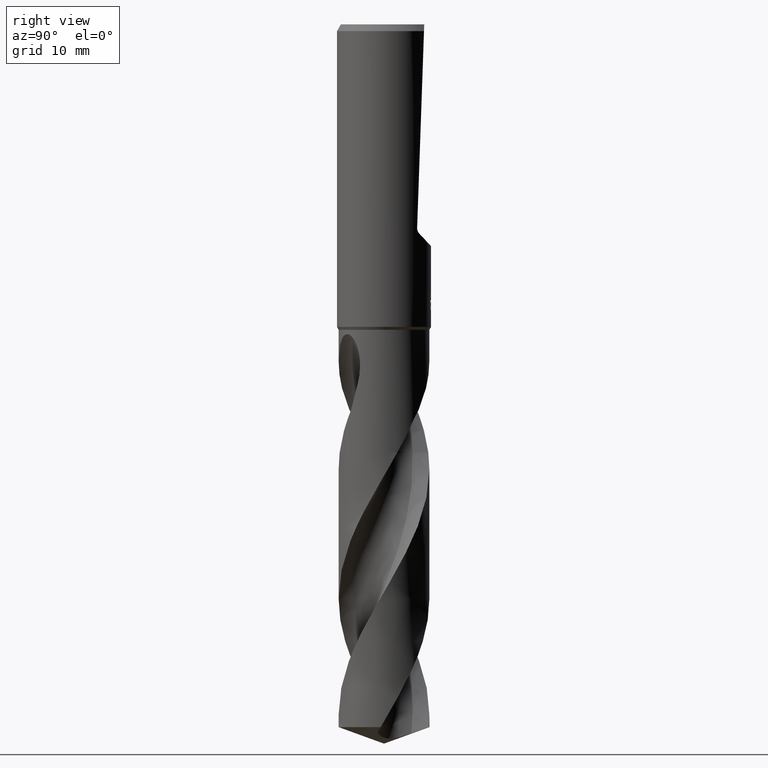
[diagram: clean part render]
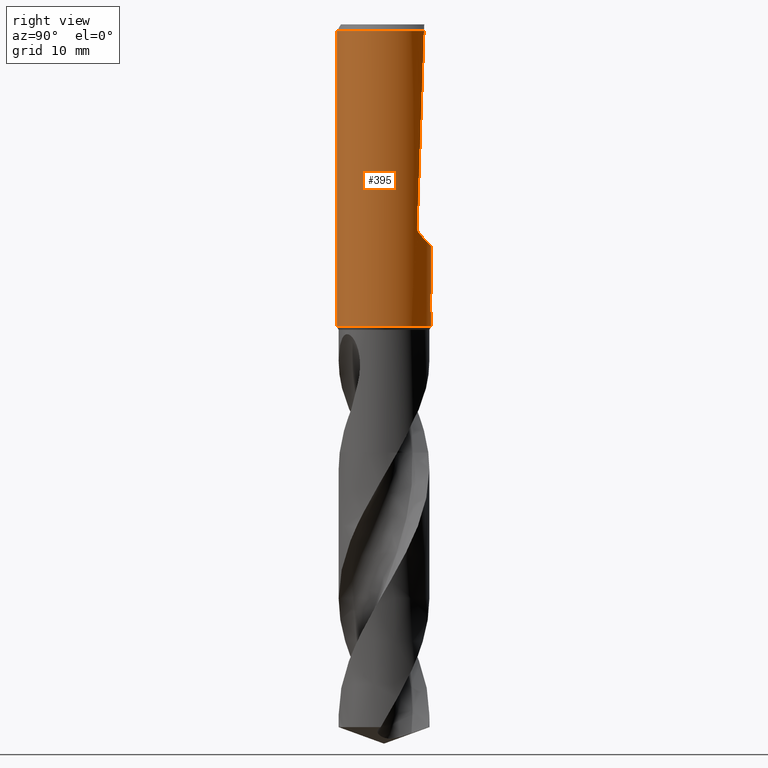
[diagram: same view with one face highlighted and labeled with its STEP entity id]
A machine part, right view. The second image highlights one B-rep face of the part: STEP entity #395.
In plain terms, the highlighted cylindrical surface (partial cylindrical patch) has radius 7 mm, axis along (-0, -0, 1).
Its self-contained STEP definition (entity closure, byte-faithful):
#313=EDGE_CURVE('',#619,#573,#877,.T.);
#317=VERTEX_POINT('',#881);
#333=EDGE_CURVE('',#449,#659,#899,.T.);
#351=EDGE_CURVE('',#417,#681,#922,.T.);
#359=EDGE_CURVE('',#681,#709,#932,.T.);
#361=EDGE_CURVE('',#443,#317,#934,.T.);
#387=EDGE_CURVE('',#539,#735,#961,.T.);
#393=EDGE_CURVE('',#317,#449,#968,.T.);
#395=ADVANCED_FACE('',(#970),#971,.T.);
#415=VERTEX_POINT('',#991);
#417=VERTEX_POINT('',#993);
#443=VERTEX_POINT('',#1022);
#449=VERTEX_POINT('',#1029);
#509=EDGE_CURVE('',#581,#417,#1093,.T.);
#511=EDGE_CURVE('',#573,#581,#1095,.T.);
#521=EDGE_CURVE('',#735,#619,#1107,.T.);
#539=VERTEX_POINT('',#1126);
#573=VERTEX_POINT('',#1163);
#581=VERTEX_POINT('',#1172);
#619=VERTEX_POINT('',#1214);
#653=EDGE_CURVE('',#713,#415,#1254,.T.);
#657=EDGE_CURVE('',#415,#669,#1258,.T.);
#659=VERTEX_POINT('',#1260);
#669=VERTEX_POINT('',#1271);
#681=VERTEX_POINT('',#1283);
#709=VERTEX_POINT('',#1312);
#713=VERTEX_POINT('',#1316);
#725=EDGE_CURVE('',#659,#669,#1328,.T.);
#735=VERTEX_POINT('',#1338);
#751=EDGE_CURVE('',#539,#713,#1354,.T.);
#843=EDGE_CURVE('',#443,#709,#1457,.T.);
#877=LINE('',#1528,#1529);
#881=CARTESIAN_POINT('',(4.62951370980335,5.2504859594844,-31.1252435197041));
#899=ELLIPSE('',#1559,200.575958434908,7.0);
#922=B_SPLINE_CURVE_WITH_KNOTS('',3,(#1820,#1821,#1822,#1823,#1824,#1825,#1826,#1827,#1828,#1829),.UNSPECIFIED.,.F.,.F.,(4,2,2,2,4),(0.615936741381086,0.923905112071629,1.23187348276217,1.53971221216111,1.84755094156004),.UNSPECIFIED.);
#932=B_SPLINE_CURVE_WITH_KNOTS('',3,(#2302,#2303,#2304,#2305,#2306,#2307,#2308,#2309,#2310,#2311,#2312,#2313,#2314,#2315,#2316,#2317,#2318,#2319,#2320,#2321,#2322,#2323,#2324,#2325,#2326,#2327,#2328),.UNSPECIFIED.,.F.,.F.,(4,2,3,2,2,2,2,2,2,2,2,2,4),(-0.542036445993936,-0.271018222996967,0.0,0.271018222996968,0.542036445993935,0.813346115303562,1.08465578461319,1.35548019069071,1.62630459676823,1.89727226982465,2.16823994288107,2.4392076159375,2.71017528899392),.UNSPECIFIED.);
#934=ELLIPSE('',#2331,10.2639542994774,7.0);
#961=B_SPLINE_CURVE_WITH_KNOTS('',3,(#2457,#2458,#2459,#2460,#2461,#2462,#2463,#2464,#2465,#2466,#2467,#2468,#2469,#2470,#2471,#2472),.UNSPECIFIED.,.F.,.F.,(4,2,2,2,2,2,2,4),(5.85148113241198,6.15947819753677,6.46754648496164,6.77561477238651,7.08368305981137,7.39175134723624,7.69959009287517,8.00742883851411),.UNSPECIFIED.);
#968=B_SPLINE_CURVE_WITH_KNOTS('',3,(#2482,#2483,#2484,#2485,#2486,#2487,#2488,#2489,#2490,#2491),.UNSPECIFIED.,.F.,.F.,(4,2,2,2,4),(16.7063628010312,17.2100593643904,17.5378887508026,17.8657181372147,18.1935475236268),.UNSPECIFIED.);
#970=FACE_OUTER_BOUND('',#2493,.T.);
#971=CYLINDRICAL_SURFACE('',#2494,7.0);
#991=CARTESIAN_POINT('',(8.57224447675664E-016,-7.0,-45.0));
#993=CARTESIAN_POINT('',(1.33721006514658,6.87108937808778,-40.5150484364821));
#1022=CARTESIAN_POINT('',(-8.57224447675664E-016,7.0,-33.0013676345019));
#1029=CARTESIAN_POINT('',(4.97056559808667,4.92884140900449,-30.2649660915861));
#1093=LINE('',#4150,#4151);
#1095=B_SPLINE_CURVE_WITH_KNOTS('',3,(#4154,#4155,#4156,#4157,#4158,#4159,#4160,#4161,#4162,#4163),.UNSPECIFIED.,.F.,.F.,(4,2,2,2,4),(8.00742815979372,8.31526687871434,8.62310559763496,8.93107395768936,9.23904231774376),.UNSPECIFIED.);
#1107=ELLIPSE('',#4857,21.3359620135884,7.0);
#1126=CARTESIAN_POINT('',(9.85631653213508E-016,7.0,-43.0310253601033));
#1163=CARTESIAN_POINT('',(0.873560781758956,6.94527836451302,-42.7587351791531));
#1172=CARTESIAN_POINT('',(1.33721006514658,6.87108937808778,-42.2901657003257));
#1214=CARTESIAN_POINT('',(0.873560781758957,6.94527836451302,-41.3198931596091));
#1254=CIRCLE('',#5996,7.0);
#1258=LINE('',#6002,#6003);
#1260=CARTESIAN_POINT('',(3.68619322486681,5.95079654407257,-1.0));
#1271=CARTESIAN_POINT('',(8.57224447675664E-016,-7.0,-1.0));
#1283=CARTESIAN_POINT('',(0.799431726384364,6.95420081065036,-40.000000276873));
#1312=CARTESIAN_POINT('',(-2.74802050569022E-015,7.0,-41.0232688117743));
#1316=CARTESIAN_POINT('',(0.0,7.0,-45.0));
#1328=CIRCLE('',#6943,7.0);
#1338=CARTESIAN_POINT('',(0.29010312703583,6.99398600053532,-42.9998328990228));
#1354=LINE('',#6977,#6978);
#1457=LINE('',#7660,#7661);
#1528=CARTESIAN_POINT('',(0.873560781758957,6.94527836451302,-42.0393141693811));
#1529=VECTOR('',#7706,1.0);
#1559=AXIS2_PLACEMENT_3D('',#7728,#7729,#7730);
#1820=CARTESIAN_POINT('',(1.47588609639398,6.84264278115341,-40.7782796501355));
#1821=CARTESIAN_POINT('',(1.43427021528289,6.85161888602694,-40.6780106389627));
#1822=CARTESIAN_POINT('',(1.38250505781555,6.86238887614053,-40.5819675935055));
#1823=CARTESIAN_POINT('',(1.26302025330318,6.88538170051044,-40.4044451960098));
#1824=CARTESIAN_POINT('',(1.19529199524107,6.8975804356046,-40.3229685193712));
#1825=CARTESIAN_POINT('',(1.05108129803076,6.92102322135803,-40.1787843085017));
#1826=CARTESIAN_POINT('',(0.969618423375198,6.93309768821244,-40.1110861871653));
#1827=CARTESIAN_POINT('',(0.792116821800197,6.95561315642346,-39.9916478685111));
#1828=CARTESIAN_POINT('',(0.696080763223002,6.96603163832751,-39.9398994617205));
#1829=CARTESIAN_POINT('',(0.595821810636764,6.97459650230531,-39.8982988910209));
#2302=CARTESIAN_POINT('',(0.664987495682015,6.96834210057074,-39.8134609607519));
#2303=CARTESIAN_POINT('',(0.728704683046946,6.96226158209931,-39.8772132619402));
#2304=CARTESIAN_POINT('',(0.783980930146228,6.9560576278509,-39.9579629630826));
#2305=CARTESIAN_POINT('',(0.857331586478981,6.94739853321816,-40.1350040779371));
#2306=CARTESIAN_POINT('',(0.875400981188567,6.94504666090402,-40.2313026049211));
#2307=CARTESIAN_POINT('',(0.875400981188567,6.94504666090402,-40.3216420125868));
#2308=CARTESIAN_POINT('',(0.875400981188567,6.94504666090402,-40.4119814202524));
#2309=CARTESIAN_POINT('',(0.857331586478977,6.94739853321816,-40.5082799472365));
#2310=CARTESIAN_POINT('',(0.783980930146221,6.9560576278509,-40.685321062091));
#2311=CARTESIAN_POINT('',(0.728704683046946,6.96226158209931,-40.7660707632334));
#2312=CARTESIAN_POINT('',(0.601201788425301,6.97442915788175,-40.8936439232623));
#2313=CARTESIAN_POINT('',(0.520416779900602,6.98119186147897,-40.9489826210903));
#2314=CARTESIAN_POINT('',(0.343290106212511,6.99214025419339,-41.0224214149619));
#2315=CARTESIAN_POINT('',(0.246940334999491,6.99622750070997,-41.0405166027747));
#2316=CARTESIAN_POINT('',(0.06627416096803,7.00026837167467,-41.0405166027747));
#2317=CARTESIAN_POINT('',(-0.0300009021098098,7.00049584323788,-41.0224792632517));
#2318=CARTESIAN_POINT('',(-0.207086828462645,6.99749649166544,-40.9491375975081));
#2319=CARTESIAN_POINT('',(-0.287900132119289,6.99436879728022,-40.8938351432694));
#2320=CARTESIAN_POINT('',(-0.415543530410312,6.98794742768012,-40.7662368077791));
#2321=CARTESIAN_POINT('',(-0.470882886829905,6.98424107836303,-40.6854131216791));
#2322=CARTESIAN_POINT('',(-0.544286323056282,6.97890439374672,-40.5082789756897));
#2323=CARTESIAN_POINT('',(-0.562348199187247,6.97737518719403,-40.4119645702723));
#2324=CARTESIAN_POINT('',(-0.562348199187247,6.97737518719403,-40.2313194549013));
#2325=CARTESIAN_POINT('',(-0.544286323056282,6.97890439374672,-40.1350050494839));
#2326=CARTESIAN_POINT('',(-0.470882886829905,6.98424107836303,-39.9578709034945));
#2327=CARTESIAN_POINT('',(-0.415543530410313,6.98794742768012,-39.8770472173944));
#2328=CARTESIAN_POINT('',(-0.351704954786946,6.99115896148688,-39.8132311791295));
#2331=AXIS2_PLACEMENT_3D('',#7788,#7789,#7790);
#2457=CARTESIAN_POINT('',(-1.37956950013868,6.862709959942,-42.3118860272267));
#2458=CARTESIAN_POINT('',(-1.31985944512012,6.87471311484171,-42.4006164760917));
#2459=CARTESIAN_POINT('',(-1.2521751980669,6.88748156909145,-42.4820605072323));
#2460=CARTESIAN_POINT('',(-1.10803116428717,6.91213530701744,-42.6262319850711));
#2461=CARTESIAN_POINT('',(-1.02657943157941,6.92489379632338,-42.6939460667801));
#2462=CARTESIAN_POINT('',(-0.849091702963374,6.94888931409906,-42.8134214863536));
#2463=CARTESIAN_POINT('',(-0.753058262458167,6.96010382408442,-42.8651911418259));
#2464=CARTESIAN_POINT('',(-0.552521113580874,6.97888690311178,-42.9484382818491));
#2465=CARTESIAN_POINT('',(-0.447850922696022,6.98645535289821,-42.9799817262365));
#2466=CARTESIAN_POINT('',(-0.237116900888673,6.99677814585499,-43.0214038898241));
#2467=CARTESIAN_POINT('',(-0.131050755579278,6.99952647100642,-43.0312723335086));
#2468=CARTESIAN_POINT('',(0.0742499035867442,7.00035830241466,-43.0312723335086));
#2469=CARTESIAN_POINT('',(0.180258797232803,6.99847263330913,-43.0214183295518));
#2470=CARTESIAN_POINT('',(0.390914314103444,6.98987113130027,-42.9800352841335));
#2471=CARTESIAN_POINT('',(0.495563147536711,6.98316134581655,-42.9485162373715));
#2472=CARTESIAN_POINT('',(0.595822105081569,6.97459647715165,-42.9069156645199));
#2482=CARTESIAN_POINT('',(4.47951498692558,5.37902830276148,-31.2443293592015));
#2483=CARTESIAN_POINT('',(4.60286230981,5.27630783208741,-31.1622522444136));
#2484=CARTESIAN_POINT('',(4.71123594115441,5.17848040625279,-31.0550454598824));
#2485=CARTESIAN_POINT('',(4.84524668311787,5.05260711780598,-30.8476251319948));
#2486=CARTESIAN_POINT('',(4.89249071380032,5.00654582393862,-30.7480917476589));
#2487=CARTESIAN_POINT('',(4.9555267775292,4.94416025605754,-30.5323839474923));
#2488=CARTESIAN_POINT('',(4.97129036280753,4.9281104014274,-30.4161219497665));
#2489=CARTESIAN_POINT('',(4.97129036280753,4.9281104014274,-30.1975690254917));
#2490=CARTESIAN_POINT('',(4.9555267775292,4.94416025605754,-30.0813070277659));
#2491=CARTESIAN_POINT('',(4.92400874566459,4.97535303999813,-29.9734531276827));
#2493=EDGE_LOOP('',(#7821,#7822,#7823,#7824,#7825,#7826,#7827,#7828,#7829,#7830,#7831,#7832,#7833,#7834,#7835));
#2494=AXIS2_PLACEMENT_3D('',#7836,#7837,#7838);
#4150=CARTESIAN_POINT('',(1.33721006514658,6.87108937808778,-41.4026070684039));
#4151=VECTOR('',#7941,1.0);
#4154=CARTESIAN_POINT('',(0.595821832861735,6.97459650040669,-42.906915229706));
#4155=CARTESIAN_POINT('',(0.696080782017313,6.96603163640014,-42.8653146604208));
#4156=CARTESIAN_POINT('',(0.792116837306029,6.95561315461849,-42.8135662553911));
#4157=CARTESIAN_POINT('',(0.969618432803252,6.93309768685463,-42.6941279407995));
#4158=CARTESIAN_POINT('',(1.05108130466953,6.92102322032351,-42.626429821765));
#4159=CARTESIAN_POINT('',(1.1952919969079,6.89758043528895,-42.4822456158257));
#4160=CARTESIAN_POINT('',(1.26302025262196,6.88538170061673,-42.4007689419929));
#4161=CARTESIAN_POINT('',(1.38250505299397,6.86238887709316,-42.2232465506102));
#4162=CARTESIAN_POINT('',(1.43427020866861,6.8516188874023,-42.1272035084601));
#4163=CARTESIAN_POINT('',(1.47588608833803,6.842642782891,-42.0269345007415));
#4857=AXIS2_PLACEMENT_3D('',#7956,#7957,#7958);
#5996=AXIS2_PLACEMENT_3D('',#8098,#8099,#8100);
#6002=CARTESIAN_POINT('',(8.57224447675664E-016,-7.0,-23.0));
#6003=VECTOR('',#8104,1.0);
#6943=AXIS2_PLACEMENT_3D('',#8133,#8134,#8135);
#6977=CARTESIAN_POINT('',(-8.57224447675664E-016,7.0,-23.0));
#6978=VECTOR('',#8142,1.0);
#7660=CARTESIAN_POINT('',(-8.57224447675664E-016,7.0,-23.0));
#7661=VECTOR('',#8279,1.0);
#7706=DIRECTION('',(0.0,0.0,-1.0));
#7728=CARTESIAN_POINT('',(0.0,0.0,-171.408517071162));
#7729=DIRECTION('',(0.0,-0.999390827019096,0.0348994967025007));
#7730=DIRECTION('',(0.0,0.0348994967025007,0.999390827019096));
#7788=CARTESIAN_POINT('',(0.0,0.0,-25.4947866643291));
#7789=DIRECTION('',(0.0,-0.73135370161917,-0.681998360062499));
#7790=DIRECTION('',(0.0,0.681998360062499,-0.73135370161917));
#7821=ORIENTED_EDGE('',*,*,#843,.F.);
#7822=ORIENTED_EDGE('',*,*,#361,.T.);
#7823=ORIENTED_EDGE('',*,*,#393,.T.);
#7824=ORIENTED_EDGE('',*,*,#333,.T.);
#7825=ORIENTED_EDGE('',*,*,#725,.T.);
#7826=ORIENTED_EDGE('',*,*,#657,.F.);
#7827=ORIENTED_EDGE('',*,*,#653,.F.);
#7828=ORIENTED_EDGE('',*,*,#751,.F.);
#7829=ORIENTED_EDGE('',*,*,#387,.T.);
#7830=ORIENTED_EDGE('',*,*,#521,.T.);
#7831=ORIENTED_EDGE('',*,*,#313,.T.);
#7832=ORIENTED_EDGE('',*,*,#511,.T.);
#7833=ORIENTED_EDGE('',*,*,#509,.T.);
#7834=ORIENTED_EDGE('',*,*,#351,.T.);
#7835=ORIENTED_EDGE('',*,*,#359,.T.);
#7836=CARTESIAN_POINT('',(0.0,0.0,-23.0));
#7837=DIRECTION('',(-0.0,-0.0,1.0));
#7838=DIRECTION('',(0.0,1.0,0.0));
#7941=DIRECTION('',(-0.0,-0.0,1.0));
#7956=CARTESIAN_POINT('',(0.0,0.0,-43.8351219173269));
#7957=DIRECTION('',(0.944648353914092,0.0,-0.328084573619969));
#7958=DIRECTION('',(0.328084573619969,-0.0,0.944648353914092));
#8098=CARTESIAN_POINT('',(0.0,0.0,-45.0));
#8099=DIRECTION('',(0.0,0.0,-1.0));
#8100=DIRECTION('',(0.0,1.0,0.0));
#8104=DIRECTION('',(-0.0,-0.0,1.0));
#8133=CARTESIAN_POINT('',(0.0,0.0,-1.0));
#8134=DIRECTION('',(0.0,0.0,-1.0));
#8135=DIRECTION('',(0.0,1.0,0.0));
#8142=DIRECTION('',(0.0,0.0,-1.0));
#8279=DIRECTION('',(0.0,0.0,-1.0));